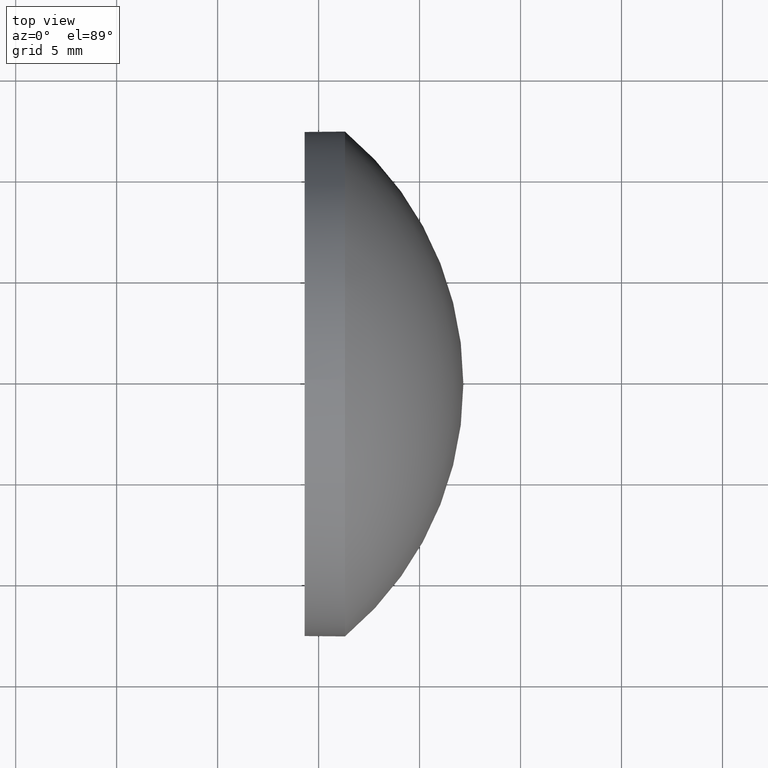
[diagram: clean part render]
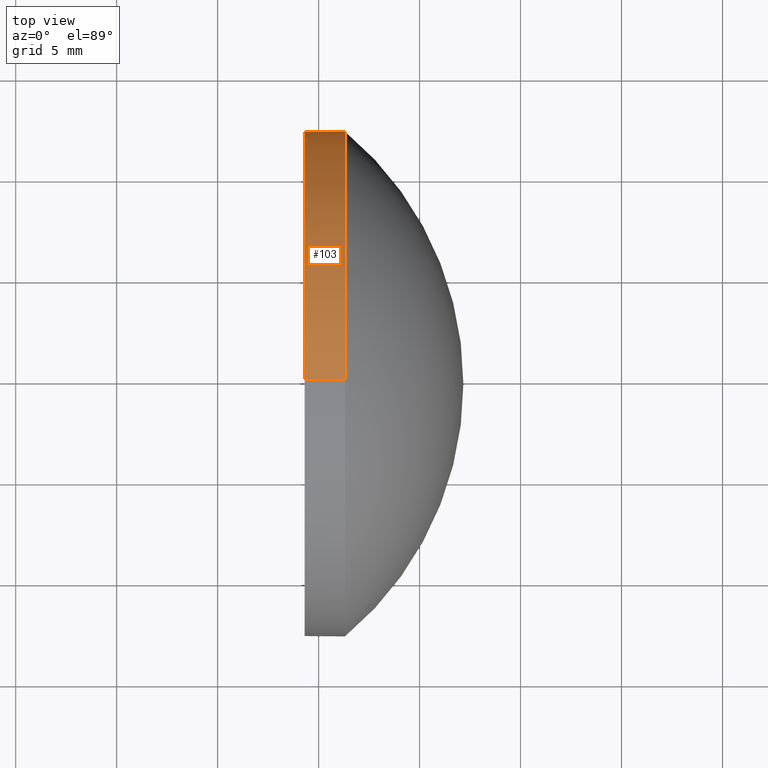
[diagram: same view with one face highlighted and labeled with its STEP entity id]
A machine part, top view. The second image highlights one B-rep face of the part: STEP entity #103.
In plain terms, the highlighted cylindrical surface (partial cylindrical patch) has radius 12.5 mm, axis along (-1, -0, -0).
Its self-contained STEP definition (entity closure, byte-faithful):
#8 = CARTESIAN_POINT ( 'NONE',  ( 411.3082929316683500, -5.229201432755415300, -12.50000000000000000 ) ) ;
#16 = DIRECTION ( 'NONE',  ( 0.0000000000000000000, 0.0000000000000000000, 1.000000000000000000 ) ) ;
#18 = DIRECTION ( 'NONE',  ( -1.000000000000000000, -0.0000000000000000000, -0.0000000000000000000 ) ) ;
#19 = CARTESIAN_POINT ( 'NONE',  ( 409.3082929316683500, -5.229201432755417000, 0.0000000000000000000 ) ) ;
#21 = DIRECTION ( 'NONE',  ( -1.000000000000000000, -0.0000000000000000000, -0.0000000000000000000 ) ) ;
#23 = EDGE_CURVE ( 'NONE', #66, #107, #48, .T. ) ;
#33 = EDGE_CURVE ( 'NONE', #90, #151, #98, .T. ) ;
#34 = DIRECTION ( 'NONE',  ( 0.0000000000000000000, 0.0000000000000000000, 1.000000000000000000 ) ) ;
#36 = CARTESIAN_POINT ( 'NONE',  ( 407.2791853532313600, -5.229201432755415300, -12.50000000000000000 ) ) ;
#40 = ORIENTED_EDGE ( 'NONE', *, *, #150, .T. ) ;
#44 = FACE_OUTER_BOUND ( 'NONE', #140, .T. ) ;
#48 = CIRCLE ( 'NONE', #99, 12.50000000000000000 ) ;
#51 = DIRECTION ( 'NONE',  ( 0.0000000000000000000, 0.0000000000000000000, 1.000000000000000000 ) ) ;
#53 = CARTESIAN_POINT ( 'NONE',  ( 411.3082929316683500, -5.229201432755417000, 12.50000000000000000 ) ) ;
#59 = AXIS2_PLACEMENT_3D ( 'NONE', #176, #18, #16 ) ;
#60 = AXIS2_PLACEMENT_3D ( 'NONE', #162, #21, #51 ) ;
#61 = DIRECTION ( 'NONE',  ( 0.0000000000000000000, 0.0000000000000000000, 1.000000000000000000 ) ) ;
#65 = CARTESIAN_POINT ( 'NONE',  ( 409.3082929316683500, -5.229201432755415300, -12.50000000000000000 ) ) ;
#66 = VERTEX_POINT ( 'NONE', #101 ) ;
#69 = LINE ( 'NONE', #36, #169 ) ;
#86 = DIRECTION ( 'NONE',  ( -1.000000000000000000, -0.0000000000000000000, -0.0000000000000000000 ) ) ;
#89 = CARTESIAN_POINT ( 'NONE',  ( 411.3082929316683500, 7.270798567244581200, 1.530808498934189700E-015 ) ) ;
#90 = VERTEX_POINT ( 'NONE', #89 ) ;
#91 = DIRECTION ( 'NONE',  ( -1.000000000000000000, -0.0000000000000000000, -0.0000000000000000000 ) ) ;
#92 = DIRECTION ( 'NONE',  ( -1.000000000000000000, -0.0000000000000000000, -0.0000000000000000000 ) ) ;
#93 = CIRCLE ( 'NONE', #59, 12.50000000000000000 ) ;
#98 = CIRCLE ( 'NONE', #139, 12.50000000000000000 ) ;
#99 = AXIS2_PLACEMENT_3D ( 'NONE', #19, #86, #34 ) ;
#101 = CARTESIAN_POINT ( 'NONE',  ( 409.3082929316683500, -5.229201432755417000, 12.50000000000000000 ) ) ;
#103 = ADVANCED_FACE ( 'NONE', ( #44 ), #119, .T. ) ;
#107 = VERTEX_POINT ( 'NONE', #65 ) ;
#110 = ORIENTED_EDGE ( 'NONE', *, *, #33, .T. ) ;
#115 = DIRECTION ( 'NONE',  ( -1.000000000000000000, -0.0000000000000000000, -0.0000000000000000000 ) ) ;
#119 = CYLINDRICAL_SURFACE ( 'NONE', #60, 12.50000000000000000 ) ;
#122 = LINE ( 'NONE', #182, #154 ) ;
#130 = CARTESIAN_POINT ( 'NONE',  ( 411.3082929316683500, -5.229201432755417000, 0.0000000000000000000 ) ) ;
#135 = ORIENTED_EDGE ( 'NONE', *, *, #23, .F. ) ;
#136 = EDGE_CURVE ( 'NONE', #180, #66, #122, .T. ) ;
#137 = ORIENTED_EDGE ( 'NONE', *, *, #136, .F. ) ;
#139 = AXIS2_PLACEMENT_3D ( 'NONE', #130, #115, #61 ) ;
#140 = EDGE_LOOP ( 'NONE', ( #110, #40, #135, #137, #165 ) ) ;
#150 = EDGE_CURVE ( 'NONE', #151, #107, #69, .T. ) ;
#151 = VERTEX_POINT ( 'NONE', #8 ) ;
#154 = VECTOR ( 'NONE', #91, 1000.000000000000000 ) ;
#162 = CARTESIAN_POINT ( 'NONE',  ( 407.2791853532313600, -5.229201432755417000, 0.0000000000000000000 ) ) ;
#165 = ORIENTED_EDGE ( 'NONE', *, *, #183, .T. ) ;
#169 = VECTOR ( 'NONE', #92, 1000.000000000000000 ) ;
#176 = CARTESIAN_POINT ( 'NONE',  ( 411.3082929316683500, -5.229201432755417000, 0.0000000000000000000 ) ) ;
#180 = VERTEX_POINT ( 'NONE', #53 ) ;
#182 = CARTESIAN_POINT ( 'NONE',  ( 407.2791853532313600, -5.229201432755417000, 12.50000000000000000 ) ) ;
#183 = EDGE_CURVE ( 'NONE', #180, #90, #93, .T. ) ;